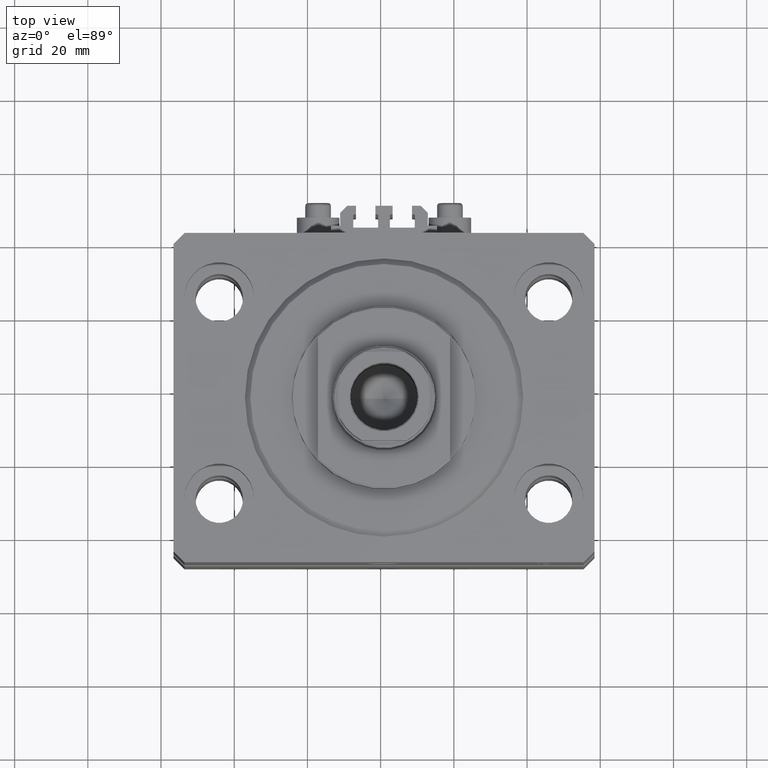
[diagram: clean part render]
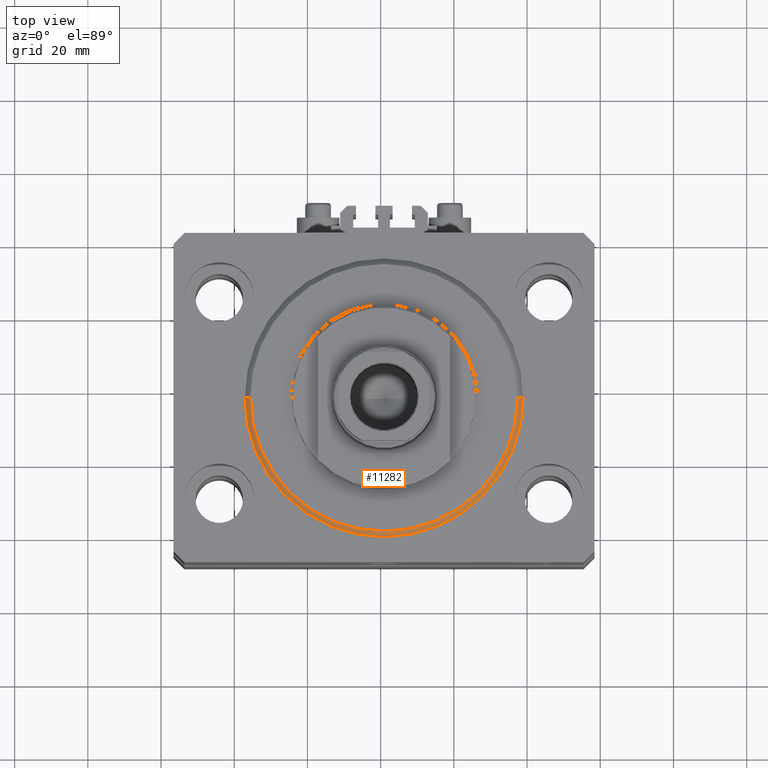
[diagram: same view with one face highlighted and labeled with its STEP entity id]
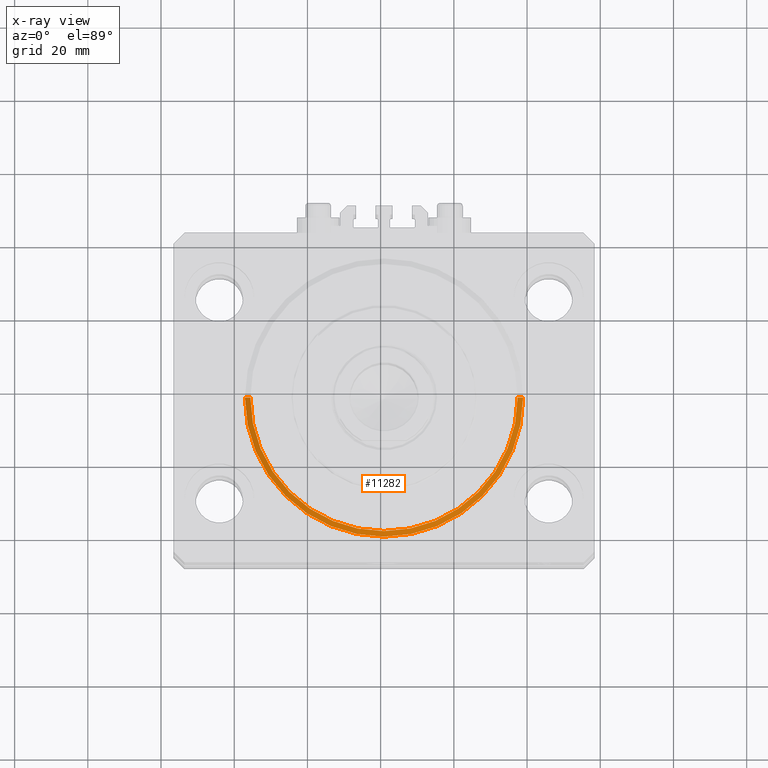
[diagram: x-ray of the same camera — body ghosted, the highlighted face saturated]
A machine part, top view. The second image highlights one B-rep face of the part: STEP entity #11282.
The next image is the same camera in x-ray: the body ghosted, the highlighted face saturated — about 0% of this face is hidden behind the body in this view.
In plain terms, the highlighted conical surface has half-angle 45 deg.
Its self-contained STEP definition (entity closure, byte-faithful):
#16 = AXIS2_PLACEMENT_3D ( 'NONE', #47209, #5911, #6151 ) ;
#2565 = CIRCLE ( 'NONE', #37522, 38.00000000000000000 ) ;
#4119 = CARTESIAN_POINT ( 'NONE',  ( 38.00000000000000000, 0.000000000000000000, 1.499999999999994449 ) ) ;
#5911 = DIRECTION ( 'NONE',  ( -0.000000000000000000, -0.000000000000000000, 1.000000000000000000 ) ) ;
#6151 = DIRECTION ( 'NONE',  ( 1.000000000000000000, 0.000000000000000000, 0.000000000000000000 ) ) ;
#9095 = DIRECTION ( 'NONE',  ( 1.000000000000000000, 0.000000000000000000, 0.000000000000000000 ) ) ;
#10711 = ORIENTED_EDGE ( 'NONE', *, *, #43052, .T. ) ;
#11282 = ADVANCED_FACE ( 'NONE', ( #32036 ), #21449, .T. ) ;
#12328 = VERTEX_POINT ( 'NONE', #13580 ) ;
#12411 = CIRCLE ( 'NONE', #37008, 36.50000000000000000 ) ;
#13580 = CARTESIAN_POINT ( 'NONE',  ( -36.50000000000000000, 4.561809326823889791E-15, 0.000000000000000000 ) ) ;
#13961 = DIRECTION ( 'NONE',  ( -0.000000000000000000, -0.000000000000000000, -1.000000000000000000 ) ) ;
#17300 = DIRECTION ( 'NONE',  ( -0.000000000000000000, -0.000000000000000000, 1.000000000000000000 ) ) ;
#17964 = DIRECTION ( 'NONE',  ( -0.7071067811865491270, 8.659560562354953812E-17, 0.7071067811865459074 ) ) ;
#18954 = EDGE_CURVE ( 'NONE', #40655, #12328, #12411, .T. ) ;
#19201 = CARTESIAN_POINT ( 'NONE',  ( 38.00000000000000000, 4.653657836759941941E-15, 1.499999999999994449 ) ) ;
#20196 = EDGE_CURVE ( 'NONE', #12328, #24764, #22179, .T. ) ;
#21449 = CONICAL_SURFACE ( 'NONE', #16, 38.00000000000000000, 0.7853981633974506105 ) ;
#22179 = LINE ( 'NONE', #47796, #25941 ) ;
#24505 = CARTESIAN_POINT ( 'NONE',  ( 0.000000000000000000, 0.000000000000000000, 1.499999999999994449 ) ) ;
#24764 = VERTEX_POINT ( 'NONE', #40519 ) ;
#25717 = EDGE_LOOP ( 'NONE', ( #29898, #30167, #10711, #27241 ) ) ;
#25941 = VECTOR ( 'NONE', #17964, 1000.000000000000114 ) ;
#27241 = ORIENTED_EDGE ( 'NONE', *, *, #45082, .F. ) ;
#28630 = DIRECTION ( 'NONE',  ( 1.000000000000000000, 0.000000000000000000, 0.000000000000000000 ) ) ;
#29898 = ORIENTED_EDGE ( 'NONE', *, *, #20196, .F. ) ;
#30167 = ORIENTED_EDGE ( 'NONE', *, *, #18954, .F. ) ;
#30301 = VECTOR ( 'NONE', #37952, 1000.000000000000114 ) ;
#30489 = LINE ( 'NONE', #4119, #30301 ) ;
#32036 = FACE_OUTER_BOUND ( 'NONE', #25717, .T. ) ;
#37008 = AXIS2_PLACEMENT_3D ( 'NONE', #47533, #13961, #28630 ) ;
#37522 = AXIS2_PLACEMENT_3D ( 'NONE', #24505, #17300, #9095 ) ;
#37952 = DIRECTION ( 'NONE',  ( 0.7071067811865491270, 0.000000000000000000, 0.7071067811865459074 ) ) ;
#38687 = CARTESIAN_POINT ( 'NONE',  ( 36.50000000000000000, 0.000000000000000000, 0.000000000000000000 ) ) ;
#40519 = CARTESIAN_POINT ( 'NONE',  ( -38.00000000000000000, 0.000000000000000000, 1.499999999999994449 ) ) ;
#40655 = VERTEX_POINT ( 'NONE', #38687 ) ;
#43052 = EDGE_CURVE ( 'NONE', #40655, #45485, #30489, .T. ) ;
#45082 = EDGE_CURVE ( 'NONE', #24764, #45485, #2565, .T. ) ;
#45485 = VERTEX_POINT ( 'NONE', #19201 ) ;
#47209 = CARTESIAN_POINT ( 'NONE',  ( 0.000000000000000000, 0.000000000000000000, 1.499999999999994449 ) ) ;
#47533 = CARTESIAN_POINT ( 'NONE',  ( 0.000000000000000000, 0.000000000000000000, 0.000000000000000000 ) ) ;
#47796 = CARTESIAN_POINT ( 'NONE',  ( -38.00000000000000000, 4.653657836759941941E-15, 1.499999999999994449 ) ) ;